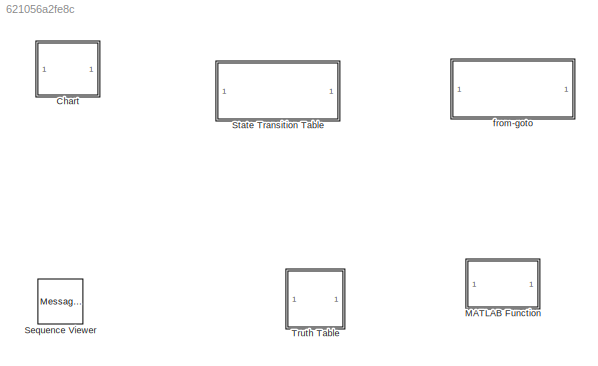
MODEL slx_621056a2fe8c
KIND model
CONFIG AbsTol = auto
CONFIG EnableMultiTasking = off
CONFIG FixedStep = auto
CONFIG MaxStep = auto
CONFIG MinStep = auto
CONFIG RelTol = 1e-3
CONFIG SampleTimeConstraint = Unconstrained
CONFIG SolverName = VariableStepAuto
CONFIG StartTime = 0.0
CONFIG StopTime = 10.0
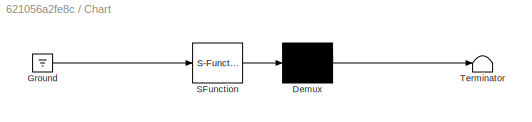
BLOCK [SubSystem] Chart
  ErrorFcn = Stateflow.Translate.translate
  PermitHierarchicalResolution = ExplicitOnly
  SFBlockType = Chart
  TreatAsAtomicUnit = on
BLOCK [Demux] Chart/ Demux 
  Outputs = 1
BLOCK [Ground] Chart/ Ground 
BLOCK [S-Function] Chart/ SFunction 
  EnableBusSupport = off
  FunctionName = sf_sfun
  PortCounts = [1 1]
  SFcnIsStateOwnerBlock = off
  SFunctionDeploymentMode = off
  Tag = Stateflow S-Function 3
BLOCK [Terminator] Chart/ Terminator 
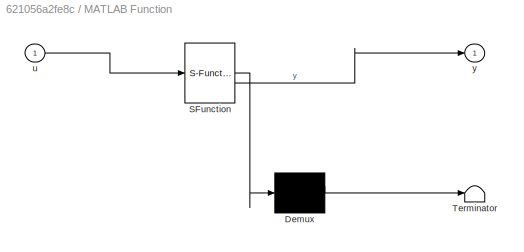
BLOCK [SubSystem] MATLAB Function
  ErrorFcn = Stateflow.Translate.translate
  LibrarySourceBlock = simulink/User-Defined\nFunctions/MATLAB Function
  PermitHierarchicalResolution = ExplicitOnly
  SFBlockType = MATLAB Function
  TreatAsAtomicUnit = on
BLOCK [Demux] MATLAB Function/ Demux 
  Outputs = 1
BLOCK [S-Function] MATLAB Function/ SFunction 
  EnableBusSupport = off
  FunctionName = sf_sfun
  PortCounts = [1 2]
  SFcnIsStateOwnerBlock = off
  SFunctionDeploymentMode = off
  Tag = Stateflow S-Function 1
BLOCK [Terminator] MATLAB Function/ Terminator 
BLOCK [Inport] MATLAB Function/u
BLOCK [Outport] MATLAB Function/y
BLOCK [MessageViewer] Sequence Viewer
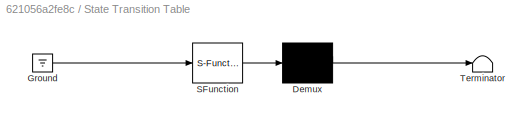
BLOCK [SubSystem] State Transition Table
  ErrorFcn = Stateflow.Translate.translate
  PermitHierarchicalResolution = ExplicitOnly
  SFBlockType = State Transition Table
  TreatAsAtomicUnit = on
BLOCK [Demux] State Transition Table/ Demux 
  Outputs = 1
BLOCK [Ground] State Transition Table/ Ground 
BLOCK [S-Function] State Transition Table/ SFunction 
  EnableBusSupport = off
  FunctionName = sf_sfun
  PortCounts = [1 1]
  SFcnIsStateOwnerBlock = off
  SFunctionDeploymentMode = off
  Tag = Stateflow S-Function 4
BLOCK [Terminator] State Transition Table/ Terminator 
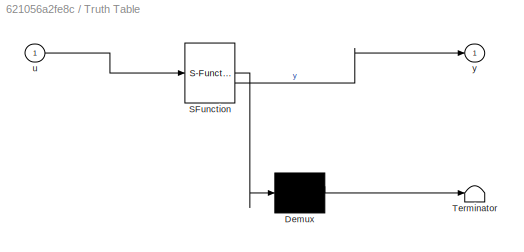
BLOCK [SubSystem] Truth Table
  ErrorFcn = Stateflow.Translate.translate
  PermitHierarchicalResolution = ExplicitOnly
  SFBlockType = Truth Table
  TreatAsAtomicUnit = on
BLOCK [Demux] Truth Table/ Demux 
  Outputs = 1
BLOCK [S-Function] Truth Table/ SFunction 
  EnableBusSupport = off
  FunctionName = sf_sfun
  PortCounts = [1 2]
  SFcnIsStateOwnerBlock = off
  SFunctionDeploymentMode = off
  Tag = Stateflow S-Function 2
BLOCK [Terminator] Truth Table/ Terminator 
BLOCK [Inport] Truth Table/u
BLOCK [Outport] Truth Table/y
  VectorParamsAs1DForOutWhenUnconnected = off
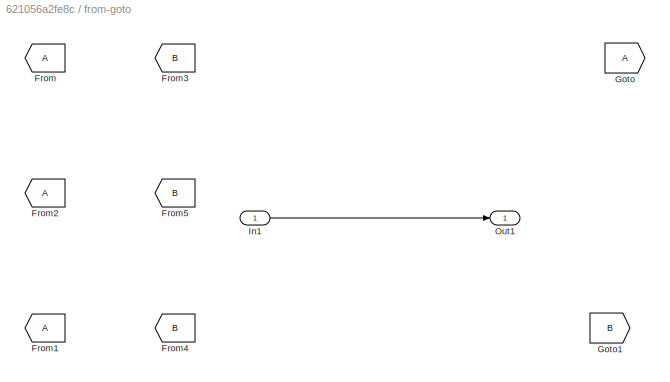
BLOCK [SubSystem] from-goto
BLOCK [From] from-goto/From
BLOCK [From] from-goto/From1
BLOCK [From] from-goto/From2
BLOCK [From] from-goto/From3
  GotoTag = B
BLOCK [From] from-goto/From4
  GotoTag = B
BLOCK [From] from-goto/From5
  GotoTag = B
BLOCK [Goto] from-goto/Goto
BLOCK [Goto] from-goto/Goto1
  GotoTag = B
BLOCK [Inport] from-goto/In1
BLOCK [Outport] from-goto/Out1
LINE from-goto/In1:1 -> from-goto/Out1:1
CHART MATLAB Function states=1 transitions=1
  STATE_LABEL 'eML_blk_kernel()'
  STATE_LABEL 'SCRIPT:\nfunction y = fcn(u)\n\ny = u;\n'
CHART Truth Table states=1 transitions=1
  STATE_LABEL 'tt_blk_kernel'
  STATE_LABEL 'SCRIPT:\nfunction y = fcn(u)\n\naVarTruthTableCondition_1 = false;\naVarTruthTableCondition_2 = false;\n\n\n% Example condition 1\n\naVarTruthTableCondition_1 = logical(u >= 0);\n\n% Example condition 2\n\naVarTruthTableCondition_2 = logical(u ^ 2 <= 1);\n\nif (aVarTruthTableCondition_1 && aVarTruthTableCondition_2)\n    aFcnTruthTableAction_1();\nelseif (~aVarTruthTableCondition_1 && ~aVarTruthTableCondition_2)\n ...<+295ch>'
CHART Chart states=0 transitions=0
CHART State Transition Table states=2 transitions=2
  STATE_LABEL 'state1'
  STATE_LABEL 'state2'
CHART  states=0 transitions=0
CHART  states=0 transitions=0
CHART  states=0 transitions=0
CHART  states=0 transitions=0
